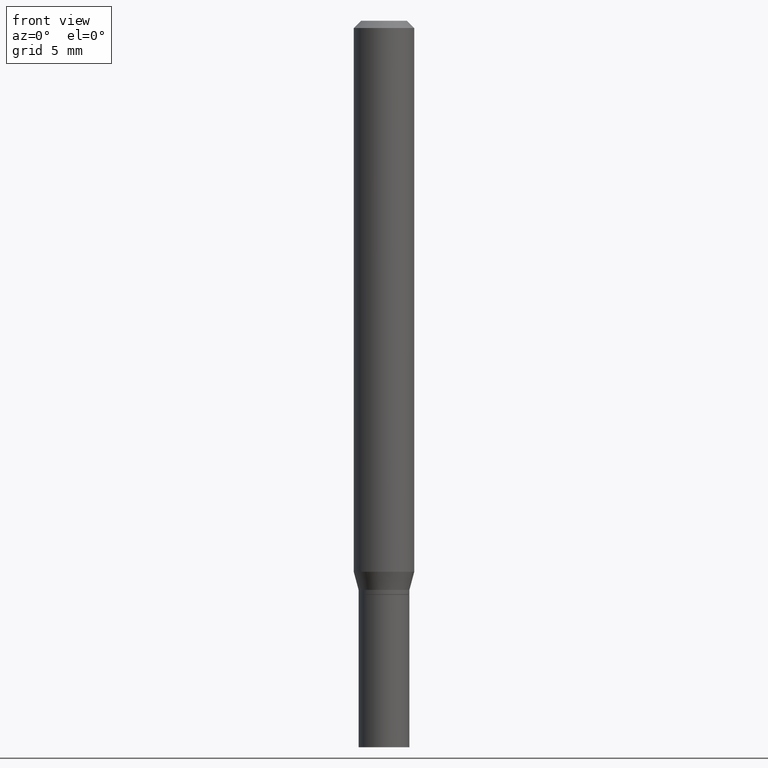
[diagram: clean part render]
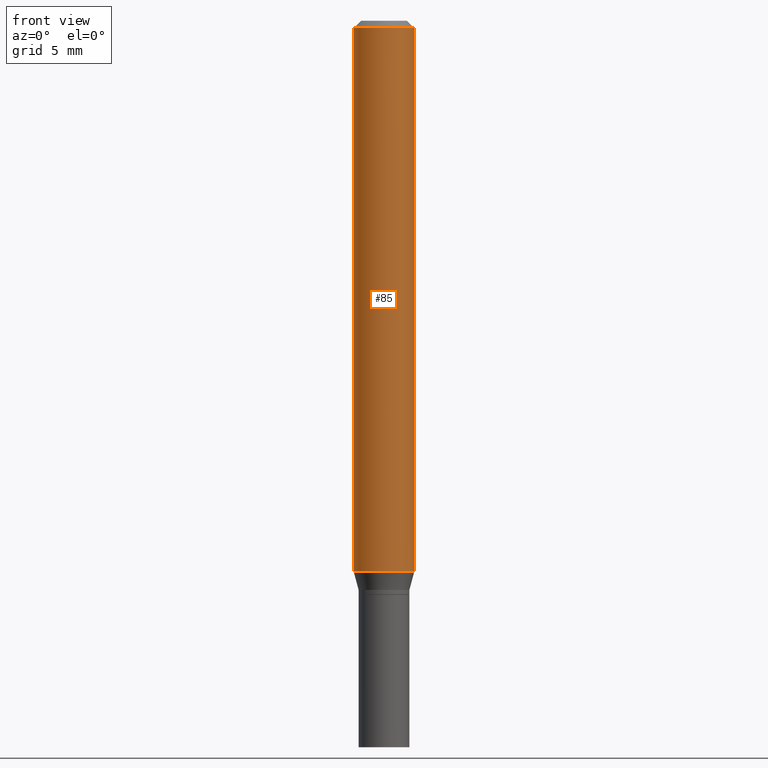
[diagram: same view with one face highlighted and labeled with its STEP entity id]
A machine part, front view. The second image highlights one B-rep face of the part: STEP entity #85.
In plain terms, the highlighted cylindrical surface (edge-blend (fillet) strip) has radius 1.5875 mm, axis along (-0, 0, 1).
Its self-contained STEP definition (entity closure, byte-faithful):
#10 = DIRECTION ( 'NONE',  ( 1.000000000000000000, -6.982962677686270655E-15, 0.000000000000000000 ) ) ;
#30 = EDGE_CURVE ( 'NONE', #138, #51, #158, .T. ) ;
#51 = VERTEX_POINT ( 'NONE', #281 ) ;
#53 = CIRCLE ( 'NONE', #374, 0.06250000000000000000 ) ;
#73 = FACE_OUTER_BOUND ( 'NONE', #88, .T. ) ;
#78 = CARTESIAN_POINT ( 'NONE',  ( 0.06250000000000000000, -4.408621882993677332E-15, -1.137679491924311614 ) ) ;
#85 = ADVANCED_FACE ( 'NONE', ( #73 ), #425, .T. ) ;
#87 = CARTESIAN_POINT ( 'NONE',  ( 3.668203209277705088E-31, -5.237222008264718399E-17, -0.01499999999999999944 ) ) ;
#88 = EDGE_LOOP ( 'NONE', ( #423, #450, #375, #363 ) ) ;
#94 = AXIS2_PLACEMENT_3D ( 'NONE', #316, #430, #391 ) ;
#138 = VERTEX_POINT ( 'NONE', #257 ) ;
#142 = CARTESIAN_POINT ( 'NONE',  ( 0.06250000000000000000, -4.888073874380388472E-16, -0.01499999999999999944 ) ) ;
#143 = LINE ( 'NONE', #442, #399 ) ;
#158 = LINE ( 'NONE', #344, #159 ) ;
#159 = VECTOR ( 'NONE', #303, 39.37007874015748143 ) ;
#190 = VERTEX_POINT ( 'NONE', #142 ) ;
#193 = VERTEX_POINT ( 'NONE', #78 ) ;
#195 = EDGE_CURVE ( 'NONE', #138, #193, #53, .T. ) ;
#224 = DIRECTION ( 'NONE',  ( -2.445468806185136877E-29, 3.491481338843145188E-15, 1.000000000000000000 ) ) ;
#231 = DIRECTION ( 'NONE',  ( -2.445468806185136597E-29, 3.491481338843145583E-15, 1.000000000000000000 ) ) ;
#242 = EDGE_CURVE ( 'NONE', #193, #190, #143, .T. ) ;
#257 = CARTESIAN_POINT ( 'NONE',  ( -0.06250000000000000000, -3.528097505788222652E-15, -1.137679491924311614 ) ) ;
#278 = AXIS2_PLACEMENT_3D ( 'NONE', #87, #231, #373 ) ;
#280 = EDGE_CURVE ( 'NONE', #51, #190, #328, .T. ) ;
#281 = CARTESIAN_POINT ( 'NONE',  ( -0.06250000000000000000, -1.568190258010403558E-15, -0.01499999999999999944 ) ) ;
#303 = DIRECTION ( 'NONE',  ( -2.445468806185136877E-29, 3.491481338843145188E-15, 1.000000000000000000 ) ) ;
#316 = CARTESIAN_POINT ( 'NONE',  ( 0.000000000000000000, 0.000000000000000000, 0.000000000000000000 ) ) ;
#322 = DIRECTION ( 'NONE',  ( -2.445468806185136597E-29, 3.491481338843145583E-15, 1.000000000000000000 ) ) ;
#328 = CIRCLE ( 'NONE', #278, 0.06250000000000000000 ) ;
#344 = CARTESIAN_POINT ( 'NONE',  ( -0.06250000000000000000, 4.440892098500626162E-16, -3.074334431409316114E-30 ) ) ;
#362 = CARTESIAN_POINT ( 'NONE',  ( 2.782159708937459233E-29, -3.972186715638284874E-15, -1.137679491924311614 ) ) ;
#363 = ORIENTED_EDGE ( 'NONE', *, *, #280, .F. ) ;
#373 = DIRECTION ( 'NONE',  ( 1.000000000000000000, -6.982962677686266711E-15, 0.000000000000000000 ) ) ;
#374 = AXIS2_PLACEMENT_3D ( 'NONE', #362, #322, #10 ) ;
#375 = ORIENTED_EDGE ( 'NONE', *, *, #242, .T. ) ;
#391 = DIRECTION ( 'NONE',  ( 1.000000000000000000, -6.982962677686266711E-15, 4.876176775795935793E-29 ) ) ;
#399 = VECTOR ( 'NONE', #224, 39.37007874015748143 ) ;
#423 = ORIENTED_EDGE ( 'NONE', *, *, #30, .F. ) ;
#425 = CYLINDRICAL_SURFACE ( 'NONE', #94, 0.06250000000000000000 ) ;
#430 = DIRECTION ( 'NONE',  ( -2.445468806185136597E-29, 3.491481338843145583E-15, 1.000000000000000000 ) ) ;
#442 = CARTESIAN_POINT ( 'NONE',  ( 0.06250000000000000000, -4.364351673553916694E-16, 3.047610484872459871E-30 ) ) ;
#450 = ORIENTED_EDGE ( 'NONE', *, *, #195, .T. ) ;